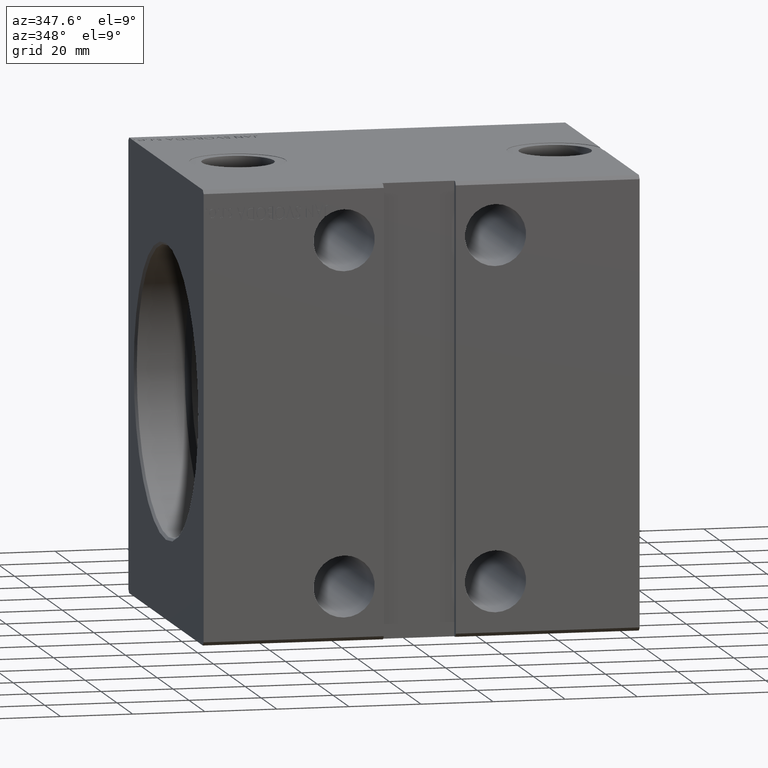
[diagram: clean part render]
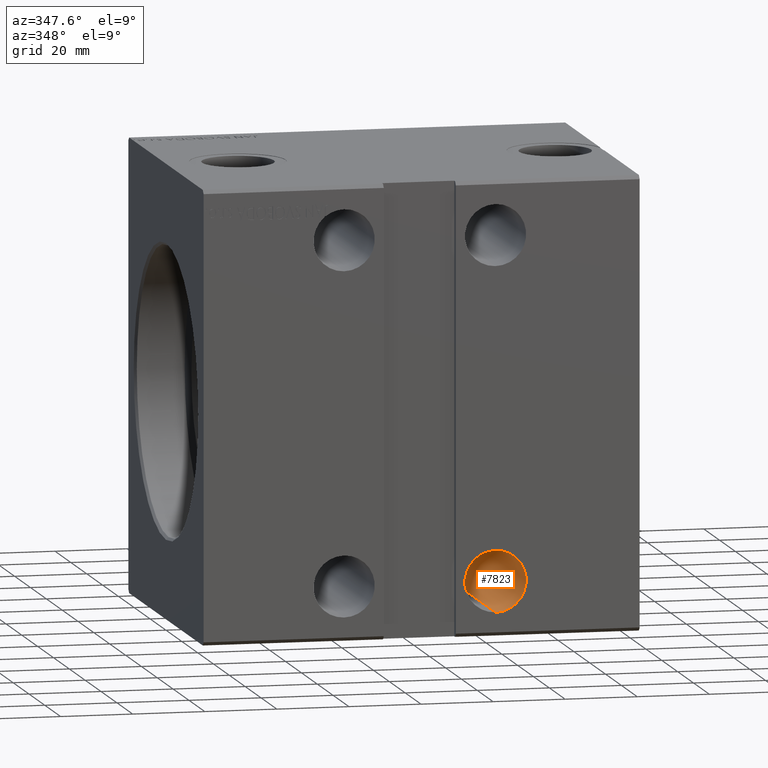
[diagram: same view with one face highlighted and labeled with its STEP entity id]
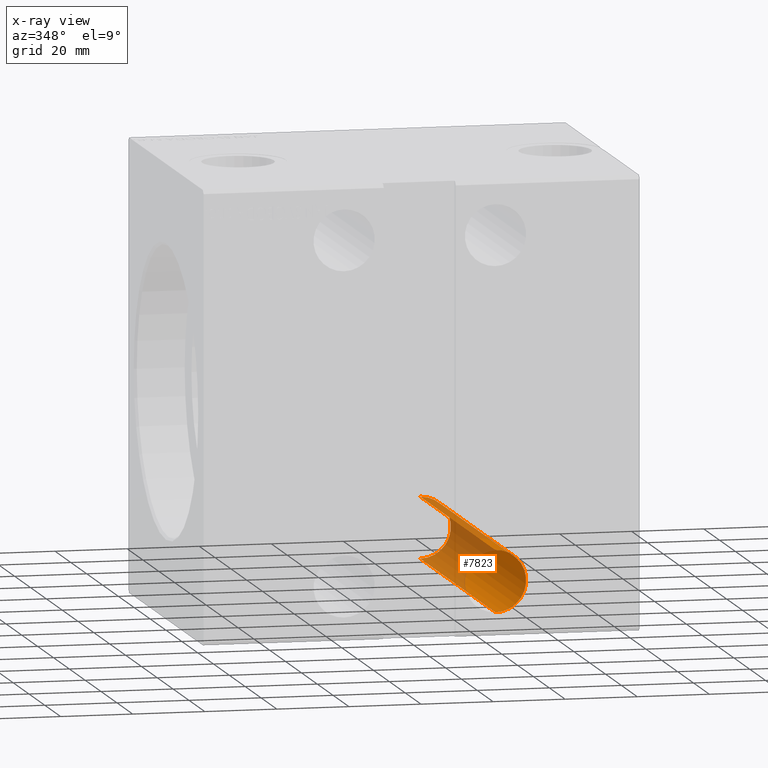
[diagram: x-ray of the same camera — body ghosted, the highlighted face saturated]
A machine part, auxiliary view. The second image highlights one B-rep face of the part: STEP entity #7823.
The next image is the same camera in x-ray: the body ghosted, the highlighted face saturated — about 45% of this face is hidden behind the body in this view.
In plain terms, the highlighted cylindrical surface (edge-blend (fillet) strip) has radius 8.5 mm, axis along (-0, -1, -0).
Its self-contained STEP definition (entity closure, byte-faithful):
#27 = DIRECTION ( 'NONE',  ( 0.000000000000000000, 0.000000000000000000, -1.000000000000000000 ) ) ;
#373 = EDGE_CURVE ( 'NONE', #34770, #6445, #8471, .T. ) ;
#435 = CYLINDRICAL_SURFACE ( 'NONE', #18147, 8.500000000000007105 ) ;
#480 = AXIS2_PLACEMENT_3D ( 'NONE', #9188, #32129, #6418 ) ;
#484 = DIRECTION ( 'NONE',  ( -0.000000000000000000, -1.000000000000000000, -5.507058653894625853E-17 ) ) ;
#3421 = FACE_OUTER_BOUND ( 'NONE', #36802, .T. ) ;
#6415 = EDGE_CURVE ( 'NONE', #6445, #38435, #21503, .T. ) ;
#6418 = DIRECTION ( 'NONE',  ( 0.000000000000000000, 0.000000000000000000, 1.000000000000000000 ) ) ;
#6445 = VERTEX_POINT ( 'NONE', #15782 ) ;
#7509 = CARTESIAN_POINT ( 'NONE',  ( 81.00000000000001421, 47.50000000000003553, -56.00000000000000711 ) ) ;
#7823 = ADVANCED_FACE ( 'NONE', ( #3421 ), #435, .F. ) ;
#8387 = ORIENTED_EDGE ( 'NONE', *, *, #24941, .T. ) ;
#8471 = LINE ( 'NONE', #30995, #32238 ) ;
#9188 = CARTESIAN_POINT ( 'NONE',  ( 81.00000000000001421, -47.50000000000000711, -47.50000000000000711 ) ) ;
#9599 = DIRECTION ( 'NONE',  ( -0.000000000000000000, -1.000000000000000000, -5.507058653894625853E-17 ) ) ;
#10004 = DIRECTION ( 'NONE',  ( 0.000000000000000000, 0.000000000000000000, -1.000000000000000000 ) ) ;
#14534 = CARTESIAN_POINT ( 'NONE',  ( 81.00000000000001421, -47.50000000000000711, -56.00000000000001421 ) ) ;
#15782 = CARTESIAN_POINT ( 'NONE',  ( 81.00000000000001421, -47.50000000000000711, -39.00000000000000000 ) ) ;
#18147 = AXIS2_PLACEMENT_3D ( 'NONE', #29340, #9599, #10004 ) ;
#18448 = DIRECTION ( 'NONE',  ( -0.000000000000000000, -1.000000000000000000, -5.507058653894625853E-17 ) ) ;
#20367 = CARTESIAN_POINT ( 'NONE',  ( 81.00000000000001421, 47.50000000000003553, -38.99999999999999289 ) ) ;
#21503 = CIRCLE ( 'NONE', #480, 8.500000000000007105 ) ;
#24404 = CARTESIAN_POINT ( 'NONE',  ( 81.00000000000001421, 47.50000000000003553, -56.00000000000000711 ) ) ;
#24941 = EDGE_CURVE ( 'NONE', #33625, #38435, #35979, .T. ) ;
#26348 = DIRECTION ( 'NONE',  ( 0.000000000000000000, -1.000000000000000000, -5.507058653894625853E-17 ) ) ;
#27480 = ORIENTED_EDGE ( 'NONE', *, *, #32256, .F. ) ;
#29340 = CARTESIAN_POINT ( 'NONE',  ( 81.00000000000001421, 47.50000000000003553, -47.50000000000000000 ) ) ;
#30995 = CARTESIAN_POINT ( 'NONE',  ( 81.00000000000001421, 47.50000000000003553, -38.99999999999999289 ) ) ;
#31034 = AXIS2_PLACEMENT_3D ( 'NONE', #35509, #26348, #27 ) ;
#32129 = DIRECTION ( 'NONE',  ( -0.000000000000000000, 1.000000000000000000, 1.692413147294446216E-16 ) ) ;
#32238 = VECTOR ( 'NONE', #18448, 1000.000000000000000 ) ;
#32256 = EDGE_CURVE ( 'NONE', #33625, #34770, #37156, .T. ) ;
#32440 = VECTOR ( 'NONE', #484, 1000.000000000000000 ) ;
#33625 = VERTEX_POINT ( 'NONE', #24404 ) ;
#34770 = VERTEX_POINT ( 'NONE', #20367 ) ;
#35509 = CARTESIAN_POINT ( 'NONE',  ( 81.00000000000001421, 47.50000000000003553, -47.50000000000000000 ) ) ;
#35660 = ORIENTED_EDGE ( 'NONE', *, *, #373, .F. ) ;
#35979 = LINE ( 'NONE', #7509, #32440 ) ;
#36802 = EDGE_LOOP ( 'NONE', ( #35660, #27480, #8387, #40526 ) ) ;
#37156 = CIRCLE ( 'NONE', #31034, 8.500000000000007105 ) ;
#38435 = VERTEX_POINT ( 'NONE', #14534 ) ;
#40526 = ORIENTED_EDGE ( 'NONE', *, *, #6415, .F. ) ;